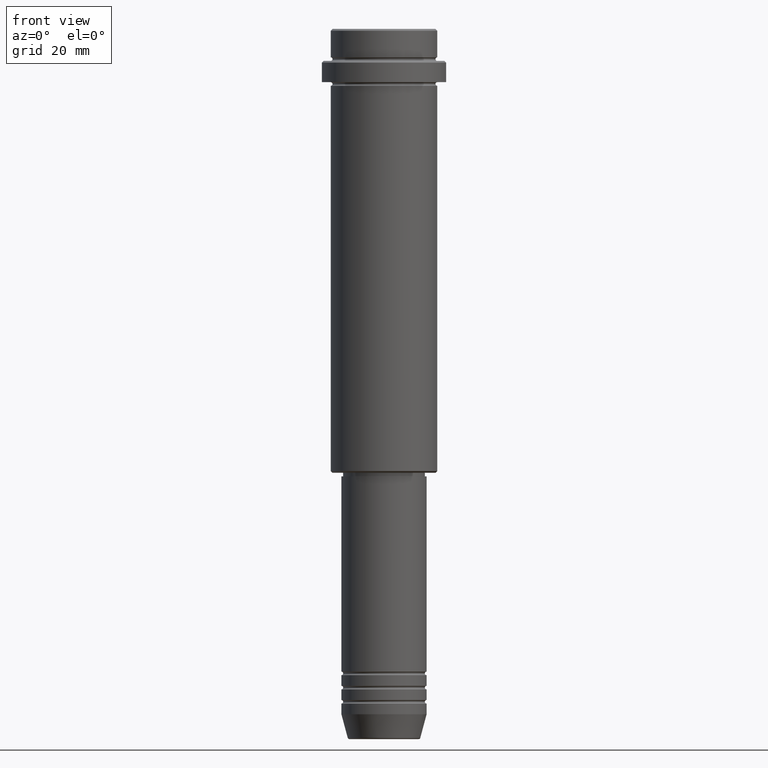
[diagram: clean part render]
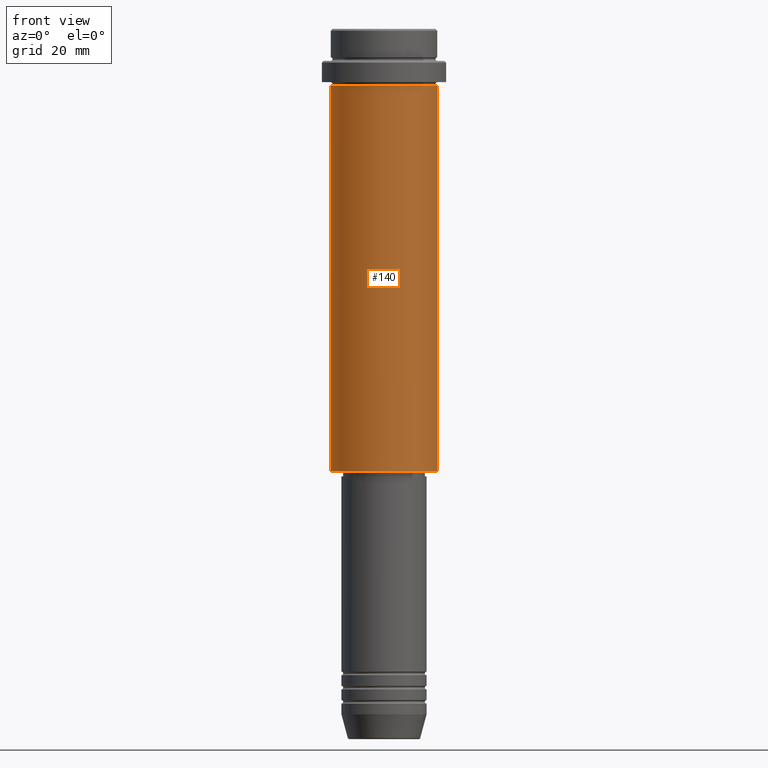
[diagram: same view with one face highlighted and labeled with its STEP entity id]
A machine part, front view. The second image highlights one B-rep face of the part: STEP entity #140.
In plain terms, the highlighted cylindrical surface (partial cylindrical patch) has radius 15 mm, axis along (-0, -0, 1).
Its self-contained STEP definition (entity closure, byte-faithful):
#18 = EDGE_CURVE ( 'NONE', #1406, #224, #494, .T. ) ;
#80 = DIRECTION ( 'NONE',  ( -0.000000000000000000, -0.000000000000000000, 1.000000000000000000 ) ) ;
#104 = CARTESIAN_POINT ( 'NONE',  ( 15.00000000000000178, 0.000000000000000000, -16.00000000000000000 ) ) ;
#140 = ADVANCED_FACE ( 'NONE', ( #513 ), #1043, .T. ) ;
#224 = VERTEX_POINT ( 'NONE', #1394 ) ;
#284 = DIRECTION ( 'NONE',  ( -0.000000000000000000, -0.000000000000000000, 1.000000000000000000 ) ) ;
#309 = EDGE_CURVE ( 'NONE', #1407, #1196, #1263, .T. ) ;
#322 = AXIS2_PLACEMENT_3D ( 'NONE', #1234, #284, #820 ) ;
#413 = VECTOR ( 'NONE', #1023, 1000.000000000000000 ) ;
#467 = EDGE_CURVE ( 'NONE', #1406, #1407, #909, .T. ) ;
#491 = ORIENTED_EDGE ( 'NONE', *, *, #309, .F. ) ;
#494 = CIRCLE ( 'NONE', #322, 15.00000000000000000 ) ;
#501 = ORIENTED_EDGE ( 'NONE', *, *, #467, .F. ) ;
#506 = CARTESIAN_POINT ( 'NONE',  ( -15.00000000000000000, 1.836970198721029589E-15, -124.4999999999999858 ) ) ;
#513 = FACE_OUTER_BOUND ( 'NONE', #1140, .T. ) ;
#523 = DIRECTION ( 'NONE',  ( 1.000000000000000000, 0.000000000000000000, 0.000000000000000000 ) ) ;
#599 = DIRECTION ( 'NONE',  ( -0.000000000000000000, -0.000000000000000000, 1.000000000000000000 ) ) ;
#670 = VECTOR ( 'NONE', #806, 1000.000000000000000 ) ;
#716 = CARTESIAN_POINT ( 'NONE',  ( -15.00000000000000355, 1.836970198721029983E-15, -16.00000000000000000 ) ) ;
#781 = ORIENTED_EDGE ( 'NONE', *, *, #18, .T. ) ;
#805 = AXIS2_PLACEMENT_3D ( 'NONE', #1373, #599, #1137 ) ;
#806 = DIRECTION ( 'NONE',  ( -0.000000000000000000, -0.000000000000000000, 1.000000000000000000 ) ) ;
#820 = DIRECTION ( 'NONE',  ( -1.000000000000000000, 0.000000000000000000, 0.000000000000000000 ) ) ;
#858 = CARTESIAN_POINT ( 'NONE',  ( 0.000000000000000000, 0.000000000000000000, -16.00000000000000000 ) ) ;
#860 = EDGE_CURVE ( 'NONE', #224, #1196, #1228, .T. ) ;
#909 = LINE ( 'NONE', #1330, #670 ) ;
#925 = CARTESIAN_POINT ( 'NONE',  ( 15.00000000000000000, 0.000000000000000000, 0.000000000000000000 ) ) ;
#1023 = DIRECTION ( 'NONE',  ( -0.000000000000000000, -0.000000000000000000, 1.000000000000000000 ) ) ;
#1043 = CYLINDRICAL_SURFACE ( 'NONE', #805, 15.00000000000000000 ) ;
#1088 = AXIS2_PLACEMENT_3D ( 'NONE', #858, #80, #523 ) ;
#1137 = DIRECTION ( 'NONE',  ( 1.000000000000000000, 0.000000000000000000, 0.000000000000000000 ) ) ;
#1140 = EDGE_LOOP ( 'NONE', ( #501, #781, #1393, #491 ) ) ;
#1196 = VERTEX_POINT ( 'NONE', #104 ) ;
#1228 = LINE ( 'NONE', #925, #413 ) ;
#1234 = CARTESIAN_POINT ( 'NONE',  ( 0.000000000000000000, 0.000000000000000000, -124.4999999999999858 ) ) ;
#1263 = CIRCLE ( 'NONE', #1088, 15.00000000000000178 ) ;
#1330 = CARTESIAN_POINT ( 'NONE',  ( -15.00000000000000000, 1.836970198721029589E-15, 0.000000000000000000 ) ) ;
#1373 = CARTESIAN_POINT ( 'NONE',  ( 0.000000000000000000, 0.000000000000000000, 0.000000000000000000 ) ) ;
#1393 = ORIENTED_EDGE ( 'NONE', *, *, #860, .T. ) ;
#1394 = CARTESIAN_POINT ( 'NONE',  ( 15.00000000000000000, 0.000000000000000000, -124.4999999999999858 ) ) ;
#1406 = VERTEX_POINT ( 'NONE', #506 ) ;
#1407 = VERTEX_POINT ( 'NONE', #716 ) ;